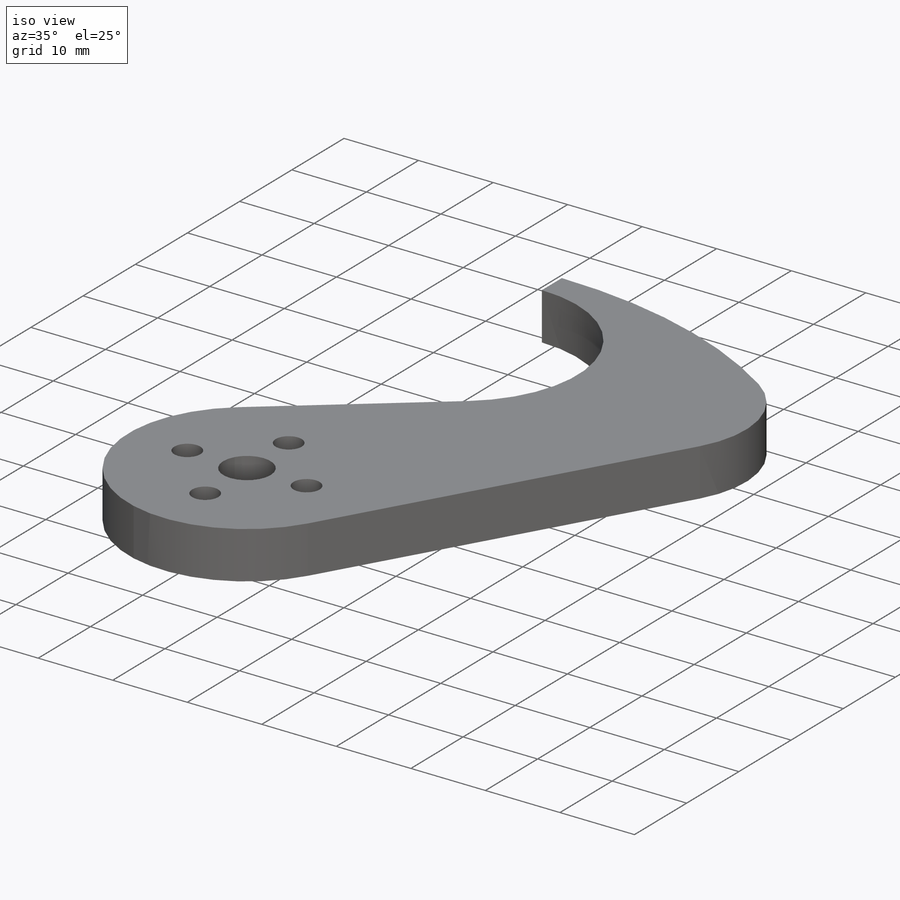
[diagram: iso view]
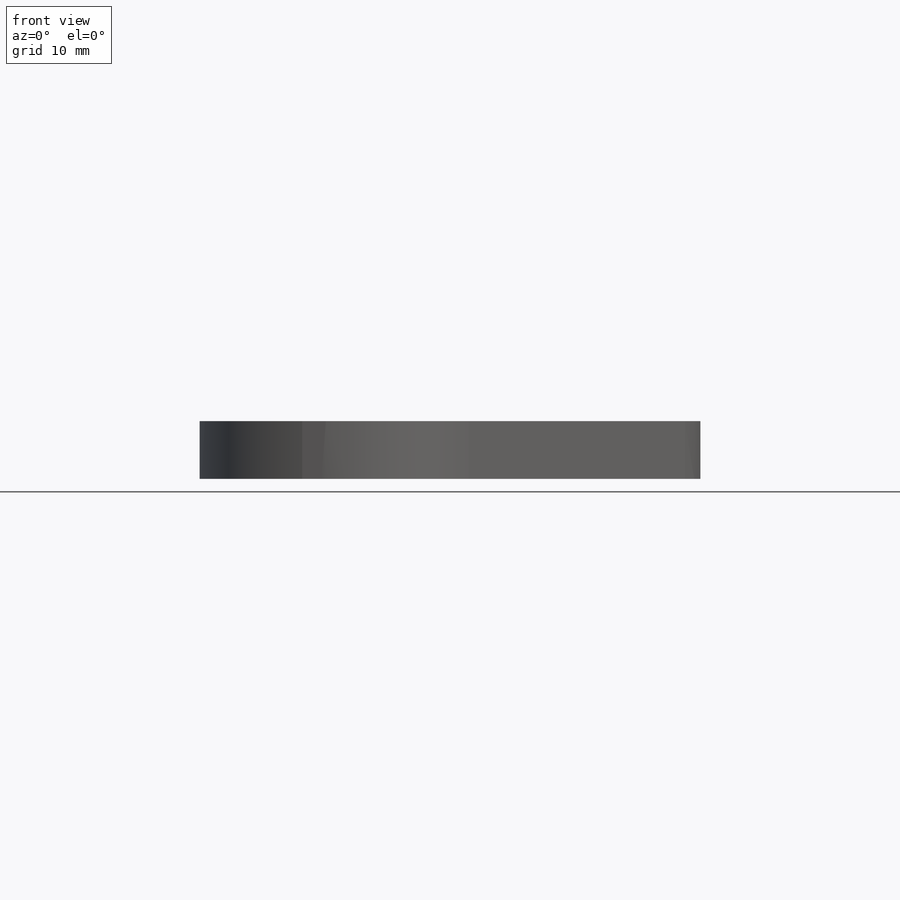
[diagram: front view]
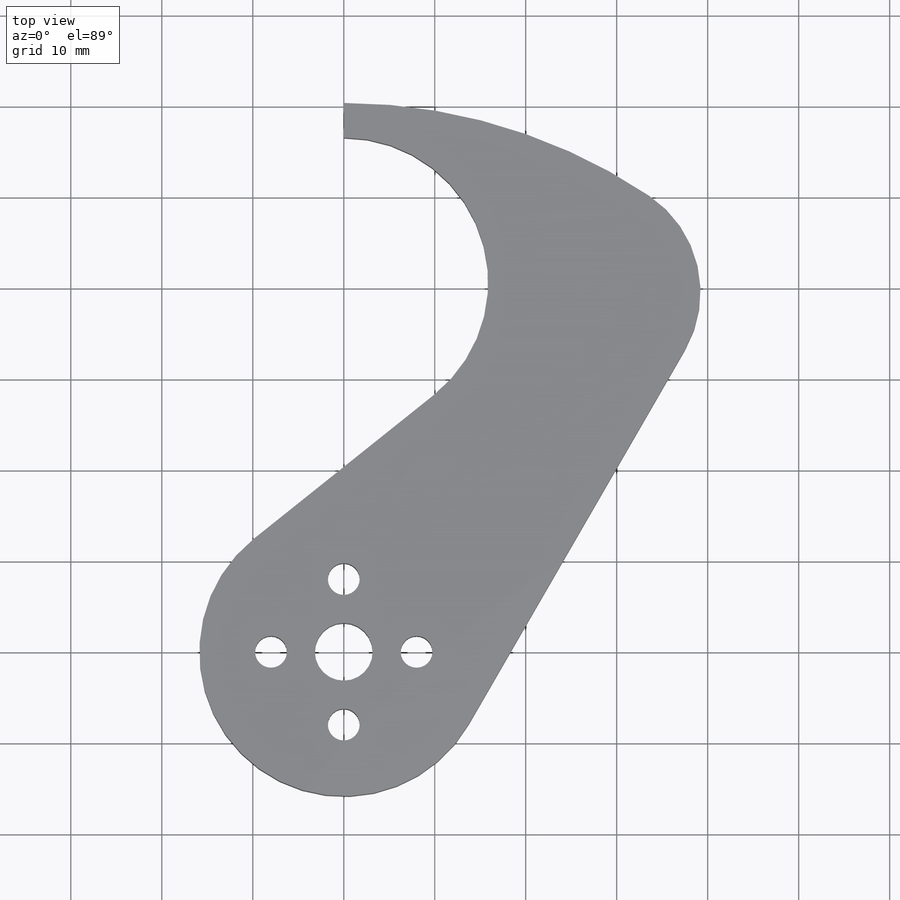
[diagram: top view]
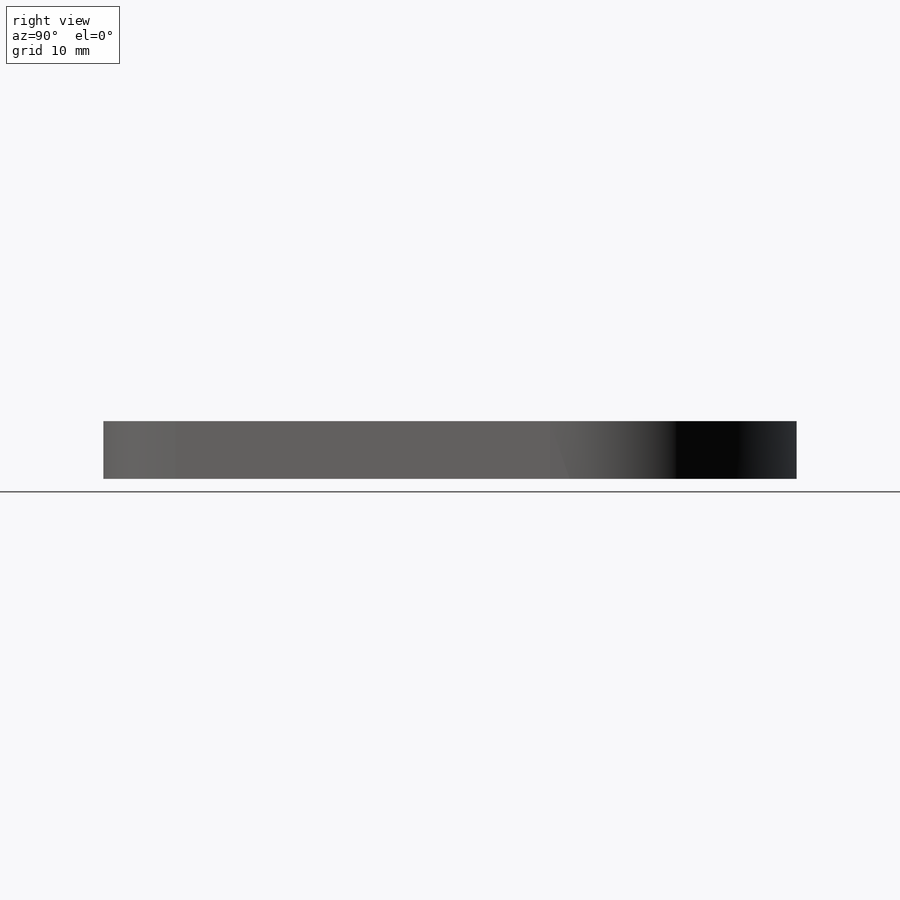
[diagram: right view]
SOLIDWORKS PART (.sldprt)
format: sldprt  version: not decoded by parser v0  size: 169,472 bytes
history: native  units: mm
features: sketch x2, material x1, extrude x1, cut_extrude x1, pattern_circular x1, fillet x1 (+13 scaffold rows collapsed)
feature tree (20):
  scaffold x13  (default folders/planes/origin — collapsed)
  material  "Pine"
  sketch  "Sketch1"  dims[c1.D1=15.875mm c1.D5=6.35mm c2.D1=60.325mm c2.D2=15.875mm c2.D4=15.875mm c3.D2=53.975mm c3.D1=15.875mm c4.D2=15.875mm c4.D3=15.875mm c4.D4=63.5mm c5.D3=40.64mm c5.D6=~51.188344mm c6.D6=30.0deg]
  extrude  "Boss-Extrude1"  Depth=6.35mm
  sketch  "Sketch2"  dims[D2=3.5mm D1=8.0mm]
  cut_extrude  "Cut-Extrude1"  [1 undecoded]
  pattern_circular  "CirPattern1"  Count=4 Angle=360deg
  fillet  "Fillet1"  Radius=12.7mm
decode coverage: 5 of 6 modeling features carry decoded parameters
note: ~ marks probable driven/reference dimensions
note: 1 parameter value undecoded
note: suppression state not decoded; provenance and decode notes live in map.json
